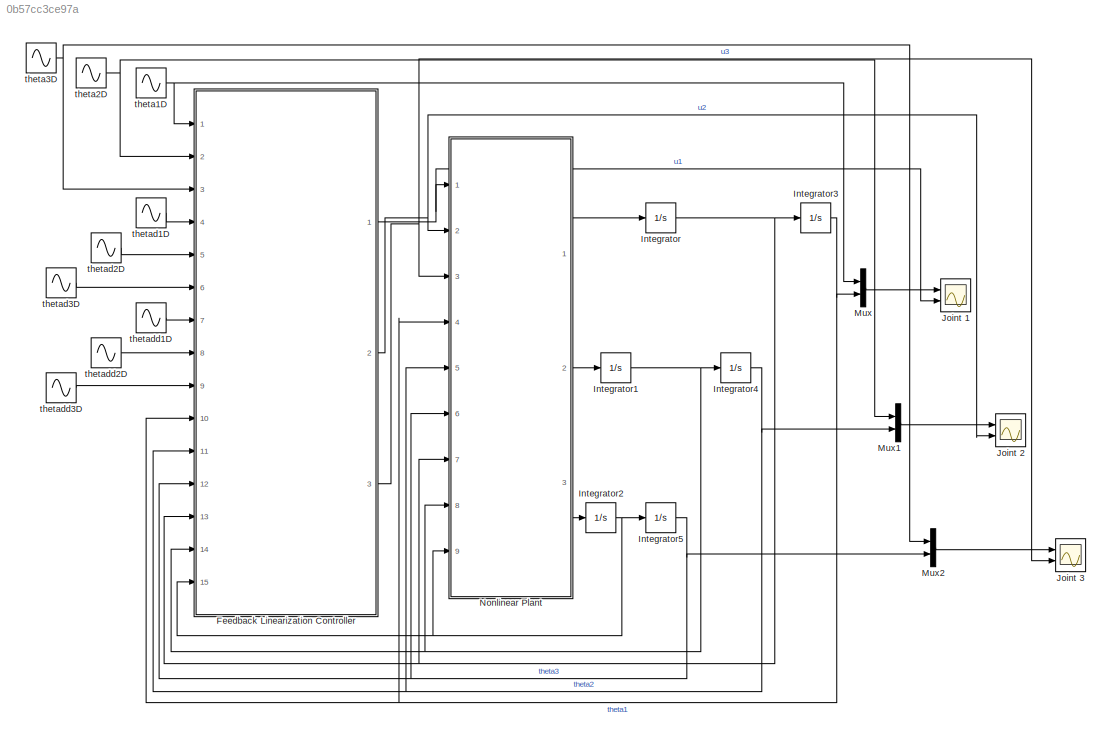
MODEL slx_0b57cc3ce97a
KIND model
CONFIG AbsTol = auto
CONFIG EnableMultiTasking = off
CONFIG FixedStep = auto
CONFIG MaxStep = auto
CONFIG MinStep = auto
CONFIG RelTol = 1e-3
CONFIG SampleTimeConstraint = Unconstrained
CONFIG Solver = VariableStepAuto
CONFIG SolverName = VariableStepAuto
CONFIG StartTime = 0.0
CONFIG StopTime = 20
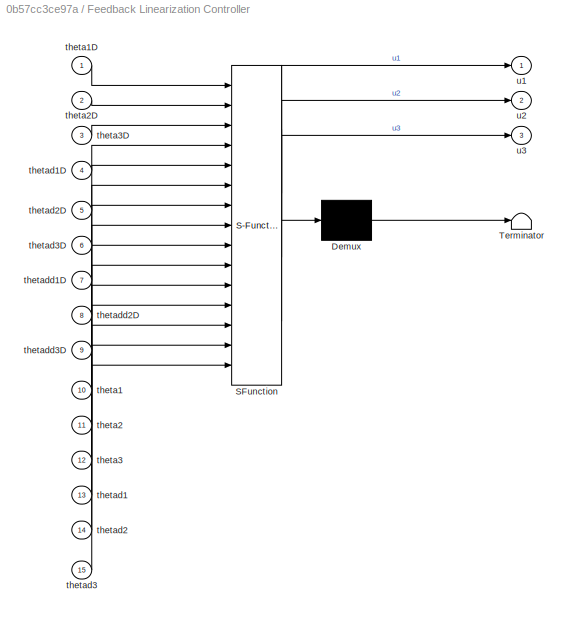
BLOCK [SubSystem] Feedback Linearization Controller
  ErrorFcn = Stateflow.Translate.translate
  PermitHierarchicalResolution = ExplicitOnly
  Ports = [15, 3]
  RequestExecContextInheritance = off
  SFBlockType = MATLAB Function
  TreatAsAtomicUnit = on
BLOCK [Demux] Feedback Linearization Controller/ Demux 
  Outputs = 1
  Ports = [1, 1]
BLOCK [S-Function] Feedback Linearization Controller/ SFunction 
  EnableBusSupport = on
  FunctionName = sf_sfun
  PortCounts = [15 4]
  Ports = [15, 4]
  SFcnIsStateOwnerBlock = off
  SFunctionDeploymentMode = off
  Tag = Stateflow S-Function feedback_linearization_control 1
BLOCK [Terminator] Feedback Linearization Controller/ Terminator 
BLOCK [Inport] Feedback Linearization Controller/theta1
  IconDisplay = Port number
  Port = 10
BLOCK [Inport] Feedback Linearization Controller/theta1D
  IconDisplay = Port number
BLOCK [Inport] Feedback Linearization Controller/theta2
  IconDisplay = Port number
  Port = 11
BLOCK [Inport] Feedback Linearization Controller/theta2D
  IconDisplay = Port number
  Port = 2
BLOCK [Inport] Feedback Linearization Controller/theta3
  IconDisplay = Port number
  Port = 12
BLOCK [Inport] Feedback Linearization Controller/theta3D
  IconDisplay = Port number
  Port = 3
BLOCK [Inport] Feedback Linearization Controller/thetad1
  IconDisplay = Port number
  Port = 13
BLOCK [Inport] Feedback Linearization Controller/thetad1D
  IconDisplay = Port number
  Port = 4
BLOCK [Inport] Feedback Linearization Controller/thetad2
  IconDisplay = Port number
  Port = 14
BLOCK [Inport] Feedback Linearization Controller/thetad2D
  IconDisplay = Port number
  Port = 5
BLOCK [Inport] Feedback Linearization Controller/thetad3
  IconDisplay = Port number
  Port = 15
BLOCK [Inport] Feedback Linearization Controller/thetad3D
  IconDisplay = Port number
  Port = 6
BLOCK [Inport] Feedback Linearization Controller/thetadd1D
  IconDisplay = Port number
  Port = 7
BLOCK [Inport] Feedback Linearization Controller/thetadd2D
  IconDisplay = Port number
  Port = 8
BLOCK [Inport] Feedback Linearization Controller/thetadd3D
  IconDisplay = Port number
  Port = 9
BLOCK [Outport] Feedback Linearization Controller/u1
  IconDisplay = Port number
BLOCK [Outport] Feedback Linearization Controller/u2
  IconDisplay = Port number
  Port = 2
BLOCK [Outport] Feedback Linearization Controller/u3
  IconDisplay = Port number
  Port = 3
BLOCK [Integrator] Integrator
  Ports = [1, 1]
BLOCK [Integrator] Integrator1
  Ports = [1, 1]
BLOCK [Integrator] Integrator2
  Ports = [1, 1]
BLOCK [Integrator] Integrator3
  Ports = [1, 1]
BLOCK [Integrator] Integrator4
  Ports = [1, 1]
BLOCK [Integrator] Integrator5
  Ports = [1, 1]
BLOCK [Scope] Joint 1
  Floating = off
  NumInputPorts = 2
  Ports = [2]
  ScopeSpecificationString = Simulink.scopes.TimeScopeBlockCfg('CurrentConfiguration', extmgr.ConfigurationSet(extmgr.Configuration('Core','General UI',true,'FigureColor',[1 1 1]),extmgr.Configuration('Core','Source UI',true),extmgr.Configuration('Sources','WiredSimulink',true,'DataLoggingVariableName','ScopeData1'),extmgr.Configuration('Visuals','Time Domain',true,'SerializedDisplays',{struct('MinYLimReal','-1.24994','MaxYLi...<+2324ch>
BLOCK [Scope] Joint 2
  Floating = off
  NumInputPorts = 2
  Ports = [2]
  ScopeSpecificationString = Simulink.scopes.TimeScopeBlockCfg('CurrentConfiguration', extmgr.ConfigurationSet(extmgr.Configuration('Core','General UI',true,'FigureColor',[1 1 1]),extmgr.Configuration('Core','Source UI',true),extmgr.Configuration('Sources','WiredSimulink',true,'DataLoggingVariableName','ScopeData1'),extmgr.Configuration('Visuals','Time Domain',true,'SerializedDisplays',{struct('MinYLimReal','-1.24994','MaxYLi...<+2324ch>
BLOCK [Scope] Joint 3
  Floating = off
  NumInputPorts = 2
  Ports = [2]
  ScopeSpecificationString = Simulink.scopes.TimeScopeBlockCfg('CurrentConfiguration', extmgr.ConfigurationSet(extmgr.Configuration('Core','General UI',true,'FigureColor',[1 1 1]),extmgr.Configuration('Core','Source UI',true),extmgr.Configuration('Sources','WiredSimulink',true,'DataLoggingVariableName','ScopeData2'),extmgr.Configuration('Visuals','Time Domain',true,'SerializedDisplays',{struct('MinYLimReal','-1.24994','MaxYLi...<+2324ch>
BLOCK [Mux] Mux
  DisplayOption = bar
  Inputs = 2
  Ports = [2, 1]
BLOCK [Mux] Mux1
  DisplayOption = bar
  Inputs = 2
  Ports = [2, 1]
BLOCK [Mux] Mux2
  DisplayOption = bar
  Inputs = 2
  Ports = [2, 1]
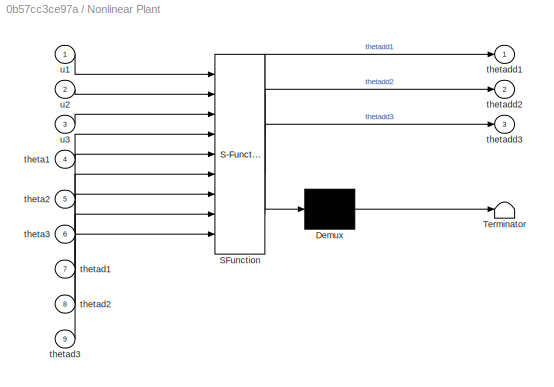
BLOCK [SubSystem] Nonlinear Plant
  ErrorFcn = Stateflow.Translate.translate
  PermitHierarchicalResolution = ExplicitOnly
  Ports = [9, 3]
  RequestExecContextInheritance = off
  SFBlockType = MATLAB Function
  TreatAsAtomicUnit = on
BLOCK [Demux] Nonlinear Plant/ Demux 
  Outputs = 1
  Ports = [1, 1]
BLOCK [S-Function] Nonlinear Plant/ SFunction 
  EnableBusSupport = on
  FunctionName = sf_sfun
  PortCounts = [9 4]
  Ports = [9, 4]
  SFcnIsStateOwnerBlock = off
  SFunctionDeploymentMode = off
  Tag = Stateflow S-Function feedback_linearization_control 2
BLOCK [Terminator] Nonlinear Plant/ Terminator 
BLOCK [Inport] Nonlinear Plant/theta1
  IconDisplay = Port number
  Port = 4
BLOCK [Inport] Nonlinear Plant/theta2
  IconDisplay = Port number
  Port = 5
BLOCK [Inport] Nonlinear Plant/theta3
  IconDisplay = Port number
  Port = 6
BLOCK [Inport] Nonlinear Plant/thetad1
  IconDisplay = Port number
  Port = 7
BLOCK [Inport] Nonlinear Plant/thetad2
  IconDisplay = Port number
  Port = 8
BLOCK [Inport] Nonlinear Plant/thetad3
  IconDisplay = Port number
  Port = 9
BLOCK [Outport] Nonlinear Plant/thetadd1
  IconDisplay = Port number
BLOCK [Outport] Nonlinear Plant/thetadd2
  IconDisplay = Port number
  Port = 2
BLOCK [Outport] Nonlinear Plant/thetadd3
  IconDisplay = Port number
  Port = 3
BLOCK [Inport] Nonlinear Plant/u1
  IconDisplay = Port number
BLOCK [Inport] Nonlinear Plant/u2
  IconDisplay = Port number
  Port = 2
BLOCK [Inport] Nonlinear Plant/u3
  IconDisplay = Port number
  Port = 3
BLOCK [Sin] theta1D
  Ports = [0, 1]
  SampleTime = 0
BLOCK [Sin] theta2D
  Frequency = 2
  Ports = [0, 1]
  SampleTime = 0
BLOCK [Sin] theta3D
  Frequency = 3
  Ports = [0, 1]
  SampleTime = 0
BLOCK [Sin] thetad1D
  Phase = pi/2
  Ports = [0, 1]
  SampleTime = 0
BLOCK [Sin] thetad2D
  Amplitude = 2
  Frequency = 2
  Phase = pi/2
  Ports = [0, 1]
  SampleTime = 0
BLOCK [Sin] thetad3D
  Amplitude = 3
  Frequency = 3
  Phase = pi/2
  Ports = [0, 1]
  SampleTime = 0
BLOCK [Sin] thetadd1D
  Amplitude = -1
  Ports = [0, 1]
  SampleTime = 0
BLOCK [Sin] thetadd2D
  Amplitude = -4
  Frequency = 2
  Ports = [0, 1]
  SampleTime = 0
BLOCK [Sin] thetadd3D
  Amplitude = -9
  Frequency = 3
  Ports = [0, 1]
  SampleTime = 0
NET Feedback Linearization Controller:1 -> Joint 1:2, Nonlinear Plant:1
NET Feedback Linearization Controller:2 -> Joint 2:2, Nonlinear Plant:2
NET Feedback Linearization Controller:3 -> Joint 3:2, Nonlinear Plant:3
NET Integrator1:1 -> Feedback Linearization Controller:14, Integrator4:1, Nonlinear Plant:8
NET Integrator2:1 -> Feedback Linearization Controller:15, Integrator5:1, Nonlinear Plant:9
NET Integrator3:1 -> Feedback Linearization Controller:10, Mux:2, Nonlinear Plant:4
NET Integrator4:1 -> Feedback Linearization Controller:11, Mux1:2, Nonlinear Plant:5
NET Integrator5:1 -> Feedback Linearization Controller:12, Mux2:2, Nonlinear Plant:6
NET Integrator:1 -> Feedback Linearization Controller:13, Integrator3:1, Nonlinear Plant:7
LINE Mux1:1 -> Joint 2:1
LINE Mux2:1 -> Joint 3:1
LINE Mux:1 -> Joint 1:1
LINE Nonlinear Plant:1 -> Integrator:1
LINE Nonlinear Plant:2 -> Integrator1:1
LINE Nonlinear Plant:3 -> Integrator2:1
NET theta1D:1 -> Feedback Linearization Controller:1, Mux:1
NET theta2D:1 -> Feedback Linearization Controller:2, Mux1:1
NET theta3D:1 -> Feedback Linearization Controller:3, Mux2:1
LINE thetad1D:1 -> Feedback Linearization Controller:4
LINE thetad2D:1 -> Feedback Linearization Controller:5
LINE thetad3D:1 -> Feedback Linearization Controller:6
LINE thetadd1D:1 -> Feedback Linearization Controller:7
LINE thetadd2D:1 -> Feedback Linearization Controller:8
LINE thetadd3D:1 -> Feedback Linearization Controller:9
note: NET lines group one-source signal fan-out (src -> all destinations, sorted); 1:1 wires keep LINE
CHART Feedback Linearization Controller states=1 transitions=1
  STATE_LABEL 'eML_blk_kernel()'
  STATE_LABEL 'SCRIPT:\nfunction [u1, u2, u3] = fcn(theta1D, theta2D, theta3D, thetad1D, thetad2D, thetad3D, thetadd1D, thetadd2D, thetadd3D, theta1, theta2, theta3, thetad1, thetad2, thetad3)\n\n% lambda\nlambda = 5;\n\nthetaD = [theta1D; theta2D; theta3D];\n\nthetadD = [thetad1D; thetad2D; thetad3D];\n\nthetaddD = [thetadd1D; thetadd2D; thetadd3D];\n\n% theta vector\ntheta = [theta1; theta2; theta3];\n\nthetad = [thetad1; th...<+1873ch>'
CHART Nonlinear Plant states=1 transitions=1
  STATE_LABEL 'eML_blk_kernel()'
  STATE_LABEL 'SCRIPT:\nfunction [thetadd1, thetadd2, thetadd3] = fcn(u1, u2, u3, theta1, theta2, theta3, thetad1, thetad2, thetad3)\n\n% theta vector\nthetad = [thetad1; thetad2; thetad3];\n\n%% model: the second model has been used\n\n% the value of parameters\nma = 17.5e-3;\nmc = 10.4e-3;\nmbe = 0.2214;\nmdf = 0.1106;\nL1 = 13.97e-2;\nL2 = 13.97e-2;\nL3 = 0.325e-2;\nL4 = 0.368e-2;\nL5 = 0.527e-2;\ng = 9.81;\n\n% the elements of ...<+1605ch>'
